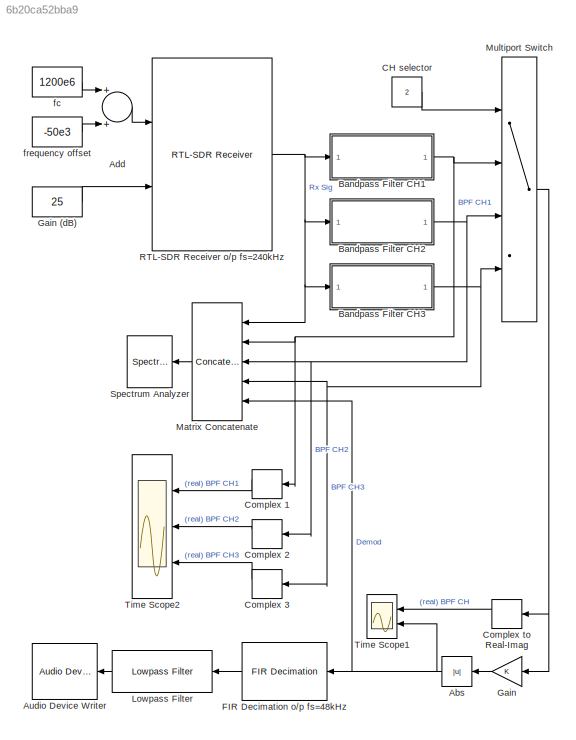
MODEL slx_6b20ca52bba9
KIND model
CONFIG AbsTol = auto
CONFIG EnableMultiTasking = off
CONFIG FixedStep = auto
CONFIG MaxStep = auto
CONFIG MinStep = auto
CONFIG RelTol = 1e-3
CONFIG SampleTimeConstraint = Unconstrained
CONFIG Solver = VariableStepAuto
CONFIG SolverName = VariableStepAuto
CONFIG StartTime = 0.0
CONFIG StopTime = inf
BLOCK [Abs] Abs
  SaturateOnIntegerOverflow = off
BLOCK [Sum] Add
  InputSameDT = off
  OutDataTypeStr = Inherit: Inherit via internal rule
  Ports = [2, 1]
  SaturateOnIntegerOverflow = off
BLOCK [Reference] Audio Device Writer  REF=dspsnks4/Audio Device
Writer
  Ports = [1]
  SourceBlock = dspsnks4/Audio Device\nWriter
  SourceProductBaseCode = DS
  SourceProductName = DSP System Toolbox
  SourceType = Audio Device Writer
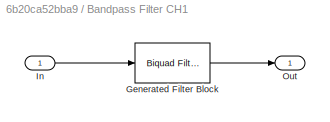
BLOCK [SubSystem] Bandpass Filter CH1
  CopyFcn = fdesignblkfcn(gcbh, {'CopyFcn'});
  DialogController = fdesignblkfcn
  InitFcn = fdesignblkfcn(gcbh, {'InitFcn'});
  Ports = [1, 1]
  RequestExecContextInheritance = off
  UserDataPersistent = on
BLOCK [Reference] Bandpass Filter CH1/Generated Filter Block  REF=dsparch4/Biquad Filter
  Ports = [1, 1]
  SourceBlock = dsparch4/Biquad Filter
  SourceProductBaseCode = DS
  SourceProductName = DSP System Toolbox
  SourceType = Biquad Filter
  Tag = BlockMethodSubSystem
  UserDataPersistent = on
BLOCK [Inport] Bandpass Filter CH1/In
  IconDisplay = Port number
BLOCK [Outport] Bandpass Filter CH1/Out
  IconDisplay = Port number
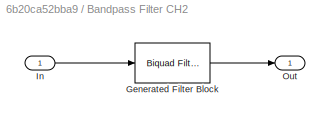
BLOCK [SubSystem] Bandpass Filter CH2
  CopyFcn = fdesignblkfcn(gcbh, {'CopyFcn'});
  DialogController = fdesignblkfcn
  InitFcn = fdesignblkfcn(gcbh, {'InitFcn'});
  Ports = [1, 1]
  RequestExecContextInheritance = off
  UserDataPersistent = on
BLOCK [Reference] Bandpass Filter CH2/Generated Filter Block  REF=dsparch4/Biquad Filter
  Ports = [1, 1]
  SourceBlock = dsparch4/Biquad Filter
  SourceProductBaseCode = DS
  SourceProductName = DSP System Toolbox
  SourceType = Biquad Filter
  Tag = BlockMethodSubSystem
  UserDataPersistent = on
BLOCK [Inport] Bandpass Filter CH2/In
  IconDisplay = Port number
BLOCK [Outport] Bandpass Filter CH2/Out
  IconDisplay = Port number
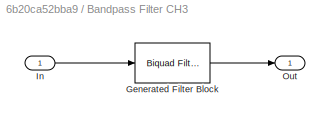
BLOCK [SubSystem] Bandpass Filter CH3
  CopyFcn = fdesignblkfcn(gcbh, {'CopyFcn'});
  DialogController = fdesignblkfcn
  InitFcn = fdesignblkfcn(gcbh, {'InitFcn'});
  Ports = [1, 1]
  RequestExecContextInheritance = off
  UserDataPersistent = on
BLOCK [Reference] Bandpass Filter CH3/Generated Filter Block  REF=dsparch4/Biquad Filter
  Ports = [1, 1]
  SourceBlock = dsparch4/Biquad Filter
  SourceProductBaseCode = DS
  SourceProductName = DSP System Toolbox
  SourceType = Biquad Filter
  Tag = BlockMethodSubSystem
  UserDataPersistent = on
BLOCK [Inport] Bandpass Filter CH3/In
  IconDisplay = Port number
BLOCK [Outport] Bandpass Filter CH3/Out
  IconDisplay = Port number
BLOCK [Constant] CH selector
  Value = 2
BLOCK [ComplexToRealImag] Complex 1
  Ports = [1, 2]
BLOCK [ComplexToRealImag] Complex 2
  Ports = [1, 2]
BLOCK [ComplexToRealImag] Complex 3
  Ports = [1, 2]
BLOCK [ComplexToRealImag] Complex to Real-Imag
  Ports = [1, 2]
BLOCK [Reference] FIR Decimation o//p fs=48kHz  REF=dspmlti4/FIR
Decimation
  Ports = [1, 1]
  SourceBlock = dspmlti4/FIR\nDecimation
  SourceProductBaseCode = DS
  SourceProductName = DSP System Toolbox
  SourceType = FIR Decimation
  UserDataPersistent = on
BLOCK [Gain] Gain
  OutDataTypeStr = Inherit: Inherit via internal rule
  ParamDataTypeStr = Inherit: Inherit via internal rule
  SaturateOnIntegerOverflow = off
BLOCK [Constant] Gain (dB)
  Value = 25
BLOCK [Reference] Lowpass Filter  REF=dspfdesign/Lowpass Filter
  Ports = [1, 1]
  SourceBlock = dspfdesign/Lowpass Filter
  SourceProductBaseCode = DS
  SourceProductName = DSP System Toolbox
  SourceType = dsp.LowpassFilter
BLOCK [Concatenate] Matrix Concatenate
  ConcatenateDimension = 2
  Mode = Multidimensional array
  NumInputs = 5
  Ports = [5, 1]
BLOCK [MultiPortSwitch] Multiport Switch
  InputSameDT = off
  Ports = [4, 1]
  SaturateOnIntegerOverflow = off
BLOCK [Reference] RTL-SDR Receiver o//p fs=240kHz  REF=sdrrlib/RTL-SDR
Receiver
  Ports = [2, 1]
  SourceBlock = sdrrlib/RTL-SDR\nReceiver
  SourceProductBaseCode = RTLSDR
  SourceProductName = Communications System Toolbox Support Package for RTL-SDR Radio
  SourceType = RTL-SDR Receiver
BLOCK [SpectrumAnalyzer] Spectrum Analyzer
  Ports = [1]
  ScopeSpecificationString = spbscopes.SpectrumAnalyzerBlockCfg('CurrentConfiguration', extmgr.ConfigurationSet(extmgr.Configuration('Core','General UI',true,'ShowMainToolbar',false,'ShowStatusbar',false,'FigureColor',[1 1 1]),extmgr.Configuration('Core','Source UI',true),extmgr.Configuration('Sources','WiredSimulink',true),extmgr.Configuration('Sources','Simulink',false),extmgr.Configuration('Sources','SimulinkEvent',false),...<+3430ch>
BLOCK [Scope] Time Scope1
  DefaultConfigurationName = spbscopes.TimeScopeBlockCfg
  Floating = off
  NumInputPorts = 2
  Ports = [2]
  ScopeSpecificationString = spbscopes.TimeScopeBlockCfg('CurrentConfiguration', extmgr.ConfigurationSet(extmgr.Configuration('Core','General UI',true,'ShowMainToolbar',false,'ShowStatusbar',false,'FigureColor',[1 1 1]),extmgr.Configuration('Core','Source UI',true),extmgr.Configuration('Sources','WiredSimulink',true),extmgr.Configuration('Visuals','Time Domain',true,'DisplayPropertyDefaults',struct('MinYLimReal','-0.3','MaxYL...<+1824ch>
  UserDataPersistent = on
BLOCK [Scope] Time Scope2
  DefaultConfigurationName = spbscopes.TimeScopeBlockCfg
  Floating = off
  NumInputPorts = 3
  Ports = [3]
  ScopeSpecificationString = spbscopes.TimeScopeBlockCfg('CurrentConfiguration', extmgr.ConfigurationSet(extmgr.Configuration('Core','General UI',true,'ShowMainToolbar',false,'ShowStatusbar',false,'FigureColor',[1 1 1]),extmgr.Configuration('Core','Source UI',true),extmgr.Configuration('Sources','WiredSimulink',true,'DataLoggingVariableName','ScopeData1'),extmgr.Configuration('Visuals','Time Domain',true,'DisplayLayoutDimensi...<+3261ch>
  UserDataPersistent = on
BLOCK [Constant] fc
  Value = 1200e6
BLOCK [Constant] frequency offset
  Value = -50e3
NET Abs:1 -> FIR Decimation o//p fs=48kHz:1, Matrix Concatenate:5, Time Scope1:2
LINE Add:1 -> RTL-SDR Receiver o//p fs=240kHz:1
NET Bandpass Filter CH1:1 -> Complex 1:1, Matrix Concatenate:2, Multiport Switch:2
NET Bandpass Filter CH2:1 -> Complex 2:1, Matrix Concatenate:3, Multiport Switch:3
NET Bandpass Filter CH3:1 -> Complex 3:1, Matrix Concatenate:4, Multiport Switch:4
LINE CH selector:1 -> Multiport Switch:1
LINE Complex 1:1 -> Time Scope2:1
LINE Complex 2:1 -> Time Scope2:2
LINE Complex 3:1 -> Time Scope2:3
LINE Complex to Real-Imag:1 -> Time Scope1:1
LINE FIR Decimation o//p fs=48kHz:1 -> Lowpass Filter:1
LINE Gain (dB):1 -> RTL-SDR Receiver o//p fs=240kHz:2
LINE Gain:1 -> Abs:1
LINE Lowpass Filter:1 -> Audio Device Writer:1
LINE Matrix Concatenate:1 -> Spectrum Analyzer:1
NET Multiport Switch:1 -> Complex to Real-Imag:1, Gain:1
NET RTL-SDR Receiver o//p fs=240kHz:1 -> Bandpass Filter CH1:1, Bandpass Filter CH2:1, Bandpass Filter CH3:1, Matrix Concatenate:1
LINE fc:1 -> Add:1
LINE frequency offset:1 -> Add:2
note: NET lines group one-source signal fan-out (src -> all destinations, sorted); 1:1 wires keep LINE
